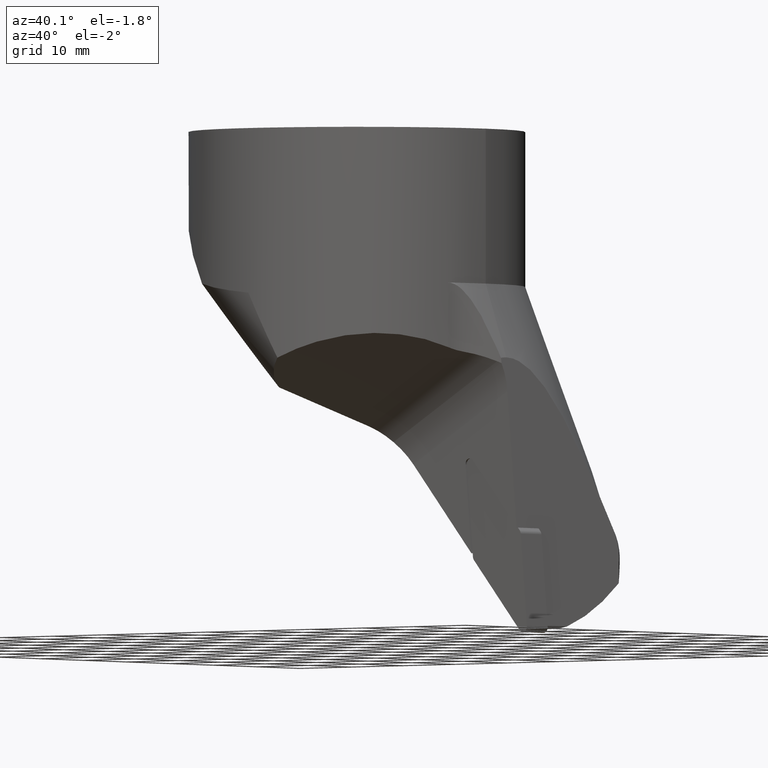
[diagram: clean part render]
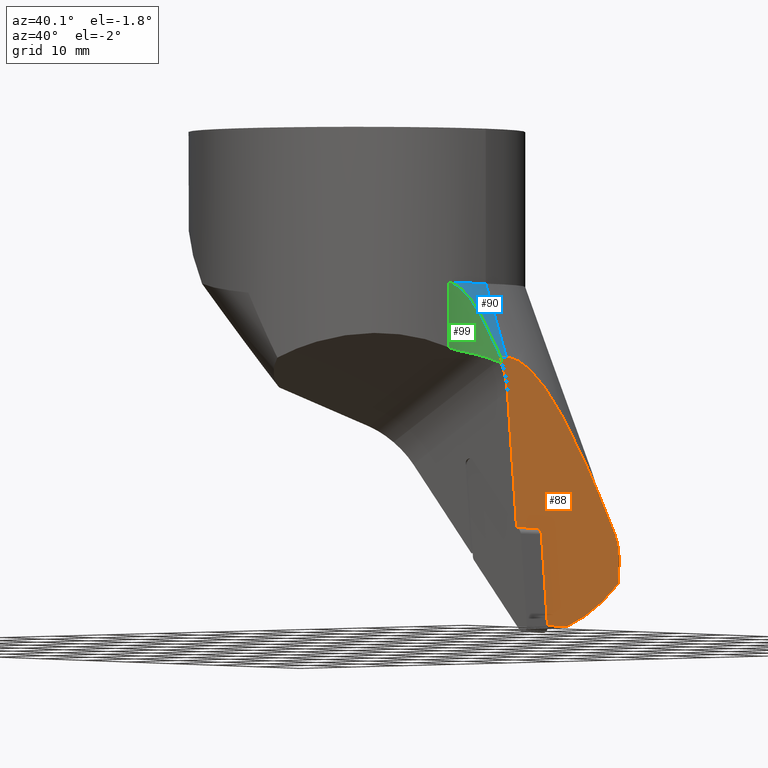
[diagram: same view with three faces highlighted in distinct colors, each labeled with its STEP entity id]
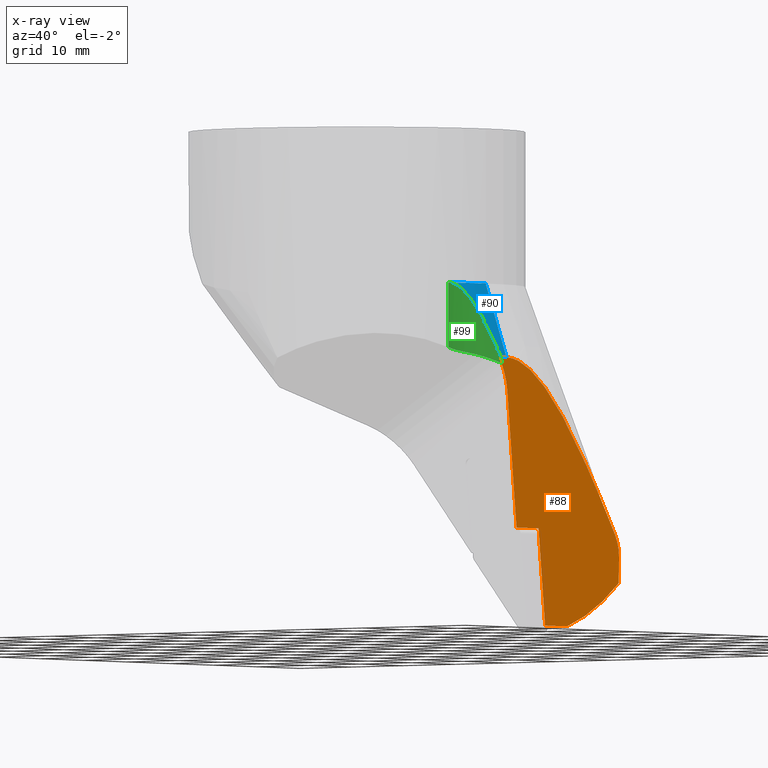
[diagram: x-ray of the same camera — body ghosted, the three highlighted faces saturated]
A machine part, auxiliary view with three faces highlighted in distinct colors.
The next image is the same camera in x-ray (body ghosted, the three faces saturated) — at least one of them is partly hidden behind the body in this view.
Their STEP definitions:

[orange] entity #88 — the highlighted planar face has unit normal (-0.9962, 0, -0.0872).
#88=ADVANCED_FACE('',(#134),#135,.F.);
#134=FACE_OUTER_BOUND('',#270,.T.);
#135=PLANE('',#271);
#270=EDGE_LOOP('',(#405,#406,#407,#408,#409,#410,#411,#412,#413,#414,#415,#416,#417));
#271=AXIS2_PLACEMENT_3D('',#418,#419,#420);
#405=ORIENTED_EDGE('',*,*,#607,.T.);
#406=ORIENTED_EDGE('',*,*,#575,.T.);
#407=ORIENTED_EDGE('',*,*,#597,.T.);
#408=ORIENTED_EDGE('',*,*,#614,.F.);
#409=ORIENTED_EDGE('',*,*,#615,.F.);
#410=ORIENTED_EDGE('',*,*,#616,.T.);
#411=ORIENTED_EDGE('',*,*,#617,.T.);
#412=ORIENTED_EDGE('',*,*,#618,.T.);
#413=ORIENTED_EDGE('',*,*,#619,.T.);
#414=ORIENTED_EDGE('',*,*,#620,.F.);
#415=ORIENTED_EDGE('',*,*,#621,.F.);
#416=ORIENTED_EDGE('',*,*,#622,.F.);
#417=ORIENTED_EDGE('',*,*,#611,.F.);
#418=CARTESIAN_POINT('',(30.7576985859095,10.8336213855461,-53.9212608657858));
#419=DIRECTION('',(-0.996194698091746,0.0,-0.0871557427476573));
#420=DIRECTION('',(-0.0871557427476573,0.0,0.996194698091746));
#575=EDGE_CURVE('',#665,#666,#667,.T.);
#597=EDGE_CURVE('',#666,#703,#704,.T.);
#607=EDGE_CURVE('',#720,#665,#721,.T.);
#611=EDGE_CURVE('',#720,#726,#727,.T.);
#614=EDGE_CURVE('',#731,#703,#732,.T.);
#615=EDGE_CURVE('',#733,#731,#734,.T.);
#616=EDGE_CURVE('',#733,#735,#736,.T.);
#617=EDGE_CURVE('',#735,#737,#738,.T.);
#618=EDGE_CURVE('',#737,#739,#740,.T.);
#619=EDGE_CURVE('',#739,#741,#742,.T.);
#620=EDGE_CURVE('',#743,#741,#744,.T.);
#621=EDGE_CURVE('',#745,#743,#746,.T.);
#622=EDGE_CURVE('',#726,#745,#747,.F.);
#665=VERTEX_POINT('',#815);
#666=VERTEX_POINT('',#816);
#667=LINE('',#817,#818);
#703=VERTEX_POINT('',#869);
#704=LINE('',#870,#871);
#720=VERTEX_POINT('',#893);
#721=LINE('',#894,#895);
#726=VERTEX_POINT('',#902);
#727=LINE('',#903,#904);
#731=VERTEX_POINT('',#910);
#732=LINE('',#911,#912);
#733=VERTEX_POINT('',#913);
#734=ELLIPSE('',#914,77.7861913430207,50.0);
#735=VERTEX_POINT('',#915);
#736=ELLIPSE('',#916,447.474816581101,39.0);
#737=VERTEX_POINT('',#917);
#738=B_SPLINE_CURVE_WITH_KNOTS('',3,(#918,#919,#920,#921,#922,#923,#924,#925,#926,#927,#928,#929,#930,#931,#932,#933),.UNSPECIFIED.,.F.,.F.,(4,2,2,2,2,2,2,4),(25.2416079099814,25.4656598537957,26.0787719061935,26.6717107321651,27.2646495581367,27.8575883841083,28.4505272100799,28.597906431912),.UNSPECIFIED.);
#739=VERTEX_POINT('',#934);
#740=(B_SPLINE_CURVE(2,(#936,#937,#938),.UNSPECIFIED.,.F.,.F.)B_SPLINE_CURVE_WITH_KNOTS((3,3),(5.55690250782876,44.9228986687946),.UNSPECIFIED.)RATIONAL_B_SPLINE_CURVE((1.06448953171046,1.27785718364488,1.27785718364488))BOUNDED_CURVE()REPRESENTATION_ITEM('')GEOMETRIC_REPRESENTATION_ITEM()CURVE());
#741=VERTEX_POINT('',#945);
#742=CIRCLE('',#946,7.99840388582549);
#743=VERTEX_POINT('',#947);
#744=CIRCLE('',#948,8.12581883776072);
#745=VERTEX_POINT('',#949);
#746=ELLIPSE('',#950,114.737132456699,10.0);
#747=ELLIPSE('',#951,8.82702335169993,8.0);
#815=CARTESIAN_POINT('',(31.2332572213502,-3.88578058618805E-015,-59.3569209419023));
#816=CARTESIAN_POINT('',(31.2332572213502,4.76,-59.3569209419023));
#817=CARTESIAN_POINT('',(31.2332572213502,5.26681069277306,-59.3569209419023));
#818=VECTOR('',#1144,10.0);
#869=CARTESIAN_POINT('',(32.4980017012521,4.76,-73.8130164968103));
#870=CARTESIAN_POINT('',(31.0906967937912,4.76,-57.7274477985999));
#871=VECTOR('',#1178,10.0);
#893=CARTESIAN_POINT('',(31.2332572213501,-0.299999999999996,-59.3569209419023));
#894=CARTESIAN_POINT('',(31.2332572213502,5.26681069277306,-59.3569209419023));
#895=VECTOR('',#1194,10.0);
#902=CARTESIAN_POINT('',(29.4568106611106,-0.300000000000003,-39.0520438453044));
#903=CARTESIAN_POINT('',(32.3151064260207,-0.299999999999992,-71.7225139349876));
#904=VECTOR('',#1200,32.7952659778906);
#910=CARTESIAN_POINT('',(32.4980017012521,9.87252795686621,-73.8130164968103));
#911=CARTESIAN_POINT('',(32.4980017012521,9.87252795686621,-73.8130164968103));
#912=VECTOR('',#1203,10.1529538737273);
#913=CARTESIAN_POINT('',(31.9117334160036,22.4196625841224,-67.1119393329704));
#914=AXIS2_PLACEMENT_3D('',#1204,#1205,#1206);
#915=CARTESIAN_POINT('',(31.5719287020232,22.8957052312076,-63.2279536794495));
#916=AXIS2_PLACEMENT_3D('',#1207,#1208,#1209);
#917=CARTESIAN_POINT('',(31.2726998496381,22.2787384365962,-59.8077522461924));
#918=CARTESIAN_POINT('',(31.5719287020232,22.8957052312076,-63.2279536794495));
#919=CARTESIAN_POINT('',(31.5649485343718,22.9053305016762,-63.1481699981115));
#920=CARTESIAN_POINT('',(31.5579845513714,22.9132942574587,-63.0685713081818));
#921=CARTESIAN_POINT('',(31.5321182119934,22.9369002405712,-62.7729176962093));
#922=CARTESIAN_POINT('',(31.5134822217073,22.9416984911875,-62.5599073525257));
#923=CARTESIAN_POINT('',(31.4784582284155,22.9302972141304,-62.1595812773495));
#924=CARTESIAN_POINT('',(31.4604805379093,22.9142857076692,-61.9540953345799));
#925=CARTESIAN_POINT('',(31.4240369871891,22.8582726182666,-61.5375436437507));
#926=CARTESIAN_POINT('',(31.4055712211651,22.8182629680437,-61.3264789722857));
#927=CARTESIAN_POINT('',(31.3691301767318,22.7153925781677,-60.9099559284458));
#928=CARTESIAN_POINT('',(31.3511453537137,22.6525142598624,-60.7043884606925));
#929=CARTESIAN_POINT('',(31.3165339584489,22.5091762347673,-60.3087784025445));
#930=CARTESIAN_POINT('',(31.2999067056412,22.4287381626976,-60.1187280333016));
#931=CARTESIAN_POINT('',(31.28047584646,22.3229426887097,-59.8966322965722));
#932=CARTESIAN_POINT('',(31.2765925914078,22.3011851984704,-59.8522464882208));
#933=CARTESIAN_POINT('',(31.2726998496381,22.2787384365962,-59.8077522461924));
#934=CARTESIAN_POINT('',(29.0183396726902,1.274084E-014,-34.0402975144146));
#936=CARTESIAN_POINT('',(31.2726998496381,22.2787384365962,-59.8077522461924));
#937=CARTESIAN_POINT('',(29.0183396726901,9.27939528337102,-34.0402975144145));
#938=CARTESIAN_POINT('',(29.0183396726902,1.274084E-014,-34.0402975144146));
#945=CARTESIAN_POINT('',(29.0188303620048,-0.300000000000002,-34.0459061189449));
#946=AXIS2_PLACEMENT_3D('',#1210,#1211,#1212);
#947=CARTESIAN_POINT('',(29.0271887477225,-1.27446593139998,-34.1414429046928));
#948=AXIS2_PLACEMENT_3D('',#1213,#1214,#1215);
#949=CARTESIAN_POINT('',(29.0947586230506,-1.24126730834138,-34.9137701139559));
#950=AXIS2_PLACEMENT_3D('',#1216,#1217,#1218);
#951=AXIS2_PLACEMENT_3D('',#1219,#1220,#1221);
#1144=DIRECTION('',(0.0,1.0,0.0));
#1178=DIRECTION('',(0.0871557427476573,-1.39099791320789E-032,-0.996194698091746));
#1194=DIRECTION('',(0.0,1.0,0.0));
#1200=DIRECTION('',(-0.0871557427476589,-3.38531489689283E-016,0.996194698091746));
#1203=DIRECTION('',(0.0,-1.0,0.0));
#1204=CARTESIAN_POINT('',(25.8519577389726,-7.886737E-015,2.15161359849549));
#1205=DIRECTION('',(-0.996194698091746,-1.415677E-016,-0.087155742747658));
#1206=DIRECTION('',(0.087155742747658,-1.106203E-016,-0.996194698091746));
#1207=CARTESIAN_POINT('',(1.428191E-012,8.50356E-014,297.640842683712));
#1208=DIRECTION('',(0.996194698091745,1.415677E-016,0.087155742747658));
#1209=DIRECTION('',(0.087155742747658,-2.305958E-016,-0.996194698091746));
#1210=CARTESIAN_POINT('',(29.7154465041337,5.1310426892E-005,-42.008265058507));
#1211=DIRECTION('',(0.996194698091822,6.22885058298525E-015,0.0871557427467853));
#1212=DIRECTION('',(-0.0871557427449919,-6.415083261E-006,0.996194698071324));
#1213=CARTESIAN_POINT('',(29.7265359292316,0.007176069732051,-42.1350177672279));
#1214=DIRECTION('',(-0.996194698091676,7.53712894592459E-014,-0.0871557427484575));
#1215=DIRECTION('',(-0.086064825649785,-0.157724658491481,0.983725458595851));
#1216=CARTESIAN_POINT('',(33.4706664587063,-10.2330096652958,-84.930625547565));
#1217=DIRECTION('',(0.996194698091746,1.415677E-016,0.087155742747658));
#1218=DIRECTION('',(-0.087155742747658,2.1917468804449E-033,0.996194698091746));
#1219=CARTESIAN_POINT('',(29.4568106611106,-8.30000000000001,-39.0520438453044));
#1220=DIRECTION('',(-0.996194698091746,-1.415677E-016,-0.087155742747658));
#1221=DIRECTION('',(-0.087155742747658,-8.804283E-016,0.996194698091746));

[blue] entity #90 — the highlighted conical surface has half-angle 20 deg.
#90=ADVANCED_FACE('',(#138),#139,.T.);
#138=FACE_OUTER_BOUND('',#274,.T.);
#139=CONICAL_SURFACE('',#275,25.5793809405338,0.34906584960114);
#274=EDGE_LOOP('',(#428,#429,#430,#431,#432,#433));
#275=AXIS2_PLACEMENT_3D('',#434,#435,#436);
#428=ORIENTED_EDGE('',*,*,#627,.F.);
#429=ORIENTED_EDGE('',*,*,#628,.T.);
#430=ORIENTED_EDGE('',*,*,#629,.F.);
#431=ORIENTED_EDGE('',*,*,#630,.T.);
#432=ORIENTED_EDGE('',*,*,#620,.T.);
#433=ORIENTED_EDGE('',*,*,#619,.F.);
#434=CARTESIAN_POINT('',(-1.02140518265514E-013,-3.83026943495679E-014,-24.5918360075933));
#435=DIRECTION('',(-6.21461900176166E-015,1.0898764596309E-015,-1.0));
#436=DIRECTION('',(-0.147809411129609,-0.989015863361917,-1.5932593263442E-016));
#619=EDGE_CURVE('',#739,#741,#742,.T.);
#620=EDGE_CURVE('',#743,#741,#744,.T.);
#627=EDGE_CURVE('',#756,#739,#757,.T.);
#628=EDGE_CURVE('',#756,#758,#759,.T.);
#629=EDGE_CURVE('',#760,#758,#761,.T.);
#630=EDGE_CURVE('',#760,#743,#762,.T.);
#739=VERTEX_POINT('',#934);
#741=VERTEX_POINT('',#945);
#742=CIRCLE('',#946,7.99840388582549);
#743=VERTEX_POINT('',#947);
#744=CIRCLE('',#948,8.12581883776072);
#756=VERTEX_POINT('',#967);
#757=LINE('',#968,#969);
#758=VERTEX_POINT('',#970);
#759=CIRCLE('',#971,25.0);
#760=VERTEX_POINT('',#972);
#761=B_SPLINE_CURVE_WITH_KNOTS('',3,(#973,#974,#975,#976,#977,#978,#979,#980,#981,#982,#983,#984,#985,#986,#987,#988,#989,#990,#991),.UNSPECIFIED.,.F.,.F.,(4,2,2,2,2,3,2,2,4),(33.8768712206712,35.3794062454111,37.8808685169195,40.3823307884279,42.3998536027014,43.0724200281071,45.0124160984399,46.0919827956407,46.3134370145552),.UNSPECIFIED.);
#762=CIRCLE('',#992,55.7563719929137);
#934=CARTESIAN_POINT('',(29.0183396726902,1.274084E-014,-34.0402975144146));
#945=CARTESIAN_POINT('',(29.0188303620048,-0.300000000000002,-34.0459061189449));
#946=AXIS2_PLACEMENT_3D('',#1210,#1211,#1212);
#947=CARTESIAN_POINT('',(29.0271887477225,-1.27446593139998,-34.1414429046928));
#948=AXIS2_PLACEMENT_3D('',#1213,#1214,#1215);
#967=CARTESIAN_POINT('',(25.0000000000009,6.273356E-015,-22.9999999761316));
#968=CARTESIAN_POINT('',(25.0000000000009,6.273356E-015,-22.9999999761316));
#969=VECTOR('',#1227,11.7488392387898);
#970=CARTESIAN_POINT('',(23.9076188990759,-7.30929261806842,-22.9999999761341));
#971=AXIS2_PLACEMENT_3D('',#1228,#1229,#1230);
#972=CARTESIAN_POINT('',(28.6058154958452,-1.49612091075857,-33.014316981776));
#973=CARTESIAN_POINT('',(28.6058154940327,-1.4961209117672,-33.0143169826672));
#974=CARTESIAN_POINT('',(28.4205990416433,-1.59925264006304,-32.5209329871812));
#975=CARTESIAN_POINT('',(28.2359416402052,-1.7097720920381,-32.0319472861716));
#976=CARTESIAN_POINT('',(27.7456319901622,-2.02588970853737,-30.7441745017709));
#977=CARTESIAN_POINT('',(27.4412711791035,-2.2455638955661,-29.955599290519));
#978=CARTESIAN_POINT('',(26.8359823022006,-2.74075608277922,-28.4240197197494));
#979=CARTESIAN_POINT('',(26.5351563537793,-3.01575943344062,-27.6808086576453));
#980=CARTESIAN_POINT('',(25.9916693920169,-3.58558917157721,-26.3966976321198));
#981=CARTESIAN_POINT('',(25.7224293003133,-3.89486253127169,-25.7817741024381));
#982=CARTESIAN_POINT('',(25.3598293067451,-4.38173999556637,-25.0200434851066));
#983=CARTESIAN_POINT('',(25.2688556021399,-4.50968080388161,-24.8344607906906));
#984=CARTESIAN_POINT('',(25.1783971345764,-4.64388903177085,-24.656931626172));
#985=CARTESIAN_POINT('',(24.9174726206548,-5.03100830857777,-24.1448544893483));
#986=CARTESIAN_POINT('',(24.6361861276413,-5.5071200992308,-23.6508684899294));
#987=CARTESIAN_POINT('',(24.2355796846763,-6.38184245230913,-23.1633873292497));
#988=CARTESIAN_POINT('',(24.0999446315487,-6.72059492786662,-23.0453954215511));
#989=CARTESIAN_POINT('',(23.9542546829783,-7.15988210847554,-23.0035182995494));
#990=CARTESIAN_POINT('',(23.9304499829576,-7.23461550757137,-22.9999999761341));
#991=CARTESIAN_POINT('',(23.9076188990759,-7.30929261806842,-22.9999999761341));
#992=AXIS2_PLACEMENT_3D('',#1231,#1232,#1233);
#1210=CARTESIAN_POINT('',(29.7154465041337,5.1310426892E-005,-42.008265058507));
#1211=DIRECTION('',(0.996194698091822,6.22885058298525E-015,0.0871557427467853));
#1212=DIRECTION('',(-0.0871557427449919,-6.415083261E-006,0.996194698071324));
#1213=CARTESIAN_POINT('',(29.7265359292316,0.007176069732051,-42.1350177672279));
#1214=DIRECTION('',(-0.996194698091676,7.53712894592459E-014,-0.0871557427484575));
#1215=DIRECTION('',(-0.086064825649785,-0.157724658491481,0.983725458595851));
#1227=DIRECTION('',(0.342020142672682,5.504786E-016,-0.939692621023576));
#1228=CARTESIAN_POINT('',(9.237056E-013,1.679511E-016,-22.9999999761316));
#1229=DIRECTION('',(0.0,0.0,-1.0));
#1230=DIRECTION('',(1.0,0.0,0.0));
#1231=CARTESIAN_POINT('',(26.2662588804088,-55.8450498484086,-45.2410669990787));
#1232=DIRECTION('',(-0.937714270521004,0.114179482785276,-0.328108202537134));
#1233=DIRECTION('',(0.0419603451912858,0.974757269797924,0.219288837854383));

[green] entity #99 — the highlighted cylindrical surface (partial cylindrical patch) has radius 10 mm, axis along (0, -0, 1).
#99=ADVANCED_FACE('',(#156),#157,.F.);
#156=FACE_OUTER_BOUND('',#292,.T.);
#157=CYLINDRICAL_SURFACE('',#293,10.0);
#292=EDGE_LOOP('',(#515,#516,#517,#518,#519,#520,#521));
#293=AXIS2_PLACEMENT_3D('',#522,#523,#524);
#515=ORIENTED_EDGE('',*,*,#629,.T.);
#516=ORIENTED_EDGE('',*,*,#645,.F.);
#517=ORIENTED_EDGE('',*,*,#654,.F.);
#518=ORIENTED_EDGE('',*,*,#624,.T.);
#519=ORIENTED_EDGE('',*,*,#653,.T.);
#520=ORIENTED_EDGE('',*,*,#621,.T.);
#521=ORIENTED_EDGE('',*,*,#630,.F.);
#522=CARTESIAN_POINT('',(33.4706664587063,-10.2330096652958,-32.5327332301973));
#523=DIRECTION('',(0.0,-0.0,1.0));
#524=DIRECTION('',(-0.649778022344436,-0.760124017301225,0.0));
#621=EDGE_CURVE('',#745,#743,#746,.T.);
#624=EDGE_CURVE('',#751,#748,#752,.T.);
#629=EDGE_CURVE('',#760,#758,#761,.T.);
#630=EDGE_CURVE('',#760,#743,#762,.T.);
#645=EDGE_CURVE('',#785,#758,#787,.T.);
#653=EDGE_CURVE('',#748,#745,#800,.T.);
#654=EDGE_CURVE('',#751,#785,#801,.T.);
#743=VERTEX_POINT('',#947);
#745=VERTEX_POINT('',#949);
#746=ELLIPSE('',#950,114.737132456699,10.0);
#748=VERTEX_POINT('',#952);
#751=VERTEX_POINT('',#956);
#752=B_SPLINE_CURVE_WITH_KNOTS('',3,(#957,#958,#959,#960,#961,#962),.UNSPECIFIED.,.F.,.F.,(4,2,4),(1.58356098069922,1.88071279900617,2.07139005658936),.UNSPECIFIED.);
#758=VERTEX_POINT('',#970);
#760=VERTEX_POINT('',#972);
#761=B_SPLINE_CURVE_WITH_KNOTS('',3,(#973,#974,#975,#976,#977,#978,#979,#980,#981,#982,#983,#984,#985,#986,#987,#988,#989,#990,#991),.UNSPECIFIED.,.F.,.F.,(4,2,2,2,2,3,2,2,4),(33.8768712206712,35.3794062454111,37.8808685169195,40.3823307884279,42.3998536027014,43.0724200281071,45.0124160984399,46.0919827956407,46.3134370145552),.UNSPECIFIED.);
#762=CIRCLE('',#992,55.7563719929137);
#785=VERTEX_POINT('',#1065);
#787=LINE('',#1067,#1068);
#800=CIRCLE('',#1123,10.8522262225972);
#801=ELLIPSE('',#1124,12.7407107706177,10.0);
#947=CARTESIAN_POINT('',(29.0271887477225,-1.27446593139998,-34.1414429046928));
#949=CARTESIAN_POINT('',(29.0947586230506,-1.24126730834138,-34.9137701139559));
#950=AXIS2_PLACEMENT_3D('',#1216,#1217,#1218);
#952=CARTESIAN_POINT('',(28.5052713892255,-1.55286843349689,-34.6380541238395));
#956=CARTESIAN_POINT('',(24.9994284034372,-4.91905390607443,-33.253401974625));
#957=CARTESIAN_POINT('',(24.9994284034372,-4.91905390607443,-33.253401974625));
#958=CARTESIAN_POINT('',(25.5526161330995,-4.03719015719198,-33.4088546370224));
#959=CARTESIAN_POINT('',(26.2422735999304,-3.25851502647238,-33.6654178012165));
#960=CARTESIAN_POINT('',(27.4198987322859,-2.24827377358199,-34.152041732652));
#961=CARTESIAN_POINT('',(27.9482380031911,-1.87151426594241,-34.3821065807161));
#962=CARTESIAN_POINT('',(28.5052713892255,-1.55286843349689,-34.6380541238395));
#970=CARTESIAN_POINT('',(23.9076188990759,-7.30929261806842,-22.9999999761341));
#972=CARTESIAN_POINT('',(28.6058154958452,-1.49612091075857,-33.014316981776));
#973=CARTESIAN_POINT('',(28.6058154940327,-1.4961209117672,-33.0143169826672));
#974=CARTESIAN_POINT('',(28.4205990416433,-1.59925264006304,-32.5209329871812));
#975=CARTESIAN_POINT('',(28.2359416402052,-1.7097720920381,-32.0319472861716));
#976=CARTESIAN_POINT('',(27.7456319901622,-2.02588970853737,-30.7441745017709));
#977=CARTESIAN_POINT('',(27.4412711791035,-2.2455638955661,-29.955599290519));
#978=CARTESIAN_POINT('',(26.8359823022006,-2.74075608277922,-28.4240197197494));
#979=CARTESIAN_POINT('',(26.5351563537793,-3.01575943344062,-27.6808086576453));
#980=CARTESIAN_POINT('',(25.9916693920169,-3.58558917157721,-26.3966976321198));
#981=CARTESIAN_POINT('',(25.7224293003133,-3.89486253127169,-25.7817741024381));
#982=CARTESIAN_POINT('',(25.3598293067451,-4.38173999556637,-25.0200434851066));
#983=CARTESIAN_POINT('',(25.2688556021399,-4.50968080388161,-24.8344607906906));
#984=CARTESIAN_POINT('',(25.1783971345764,-4.64388903177085,-24.656931626172));
#985=CARTESIAN_POINT('',(24.9174726206548,-5.03100830857777,-24.1448544893483));
#986=CARTESIAN_POINT('',(24.6361861276413,-5.5071200992308,-23.6508684899294));
#987=CARTESIAN_POINT('',(24.2355796846763,-6.38184245230913,-23.1633873292497));
#988=CARTESIAN_POINT('',(24.0999446315487,-6.72059492786662,-23.0453954215511));
#989=CARTESIAN_POINT('',(23.9542546829783,-7.15988210847554,-23.0035182995494));
#990=CARTESIAN_POINT('',(23.9304499829576,-7.23461550757137,-22.9999999761341));
#991=CARTESIAN_POINT('',(23.9076188990759,-7.30929261806842,-22.9999999761341));
#992=AXIS2_PLACEMENT_3D('',#1231,#1232,#1233);
#1065=CARTESIAN_POINT('',(23.9076188990759,-7.30929261806842,-32.5967447200507));
#1067=CARTESIAN_POINT('',(23.9076188990759,-7.30929261806842,-32.5967447200507));
#1068=VECTOR('',#1259,9.5967447439166);
#1123=AXIS2_PLACEMENT_3D('',#1269,#1270,#1271);
#1124=AXIS2_PLACEMENT_3D('',#1272,#1273,#1274);
#1216=CARTESIAN_POINT('',(33.4706664587063,-10.2330096652958,-84.930625547565));
#1217=DIRECTION('',(0.996194698091746,1.415677E-016,0.087155742747658));
#1218=DIRECTION('',(-0.087155742747658,2.1917468804449E-033,0.996194698091746));
#1231=CARTESIAN_POINT('',(26.2662588804088,-55.8450498484086,-45.2410669990787));
#1232=DIRECTION('',(-0.937714270521004,0.114179482785276,-0.328108202537134));
#1233=DIRECTION('',(0.0419603451912858,0.974757269797924,0.219288837854383));
#1259=DIRECTION('',(0.0,0.0,1.0));
#1269=CARTESIAN_POINT('',(32.1117797064013,-11.0081969793129,-38.557323677627));
#1270=DIRECTION('',(-0.489174263319434,0.168157728348649,-0.855822130178059));
#1271=DIRECTION('',(-0.332328892081708,0.871280081328151,0.361148899165642));
#1272=CARTESIAN_POINT('',(33.4706664587063,-10.2330096652958,-25.501253753662));
#1273=DIRECTION('',(-0.453153893518325,0.422618261740699,0.784885567221396));
#1274=DIRECTION('',(-0.574000268109807,0.535321441605249,-0.619640739757763));